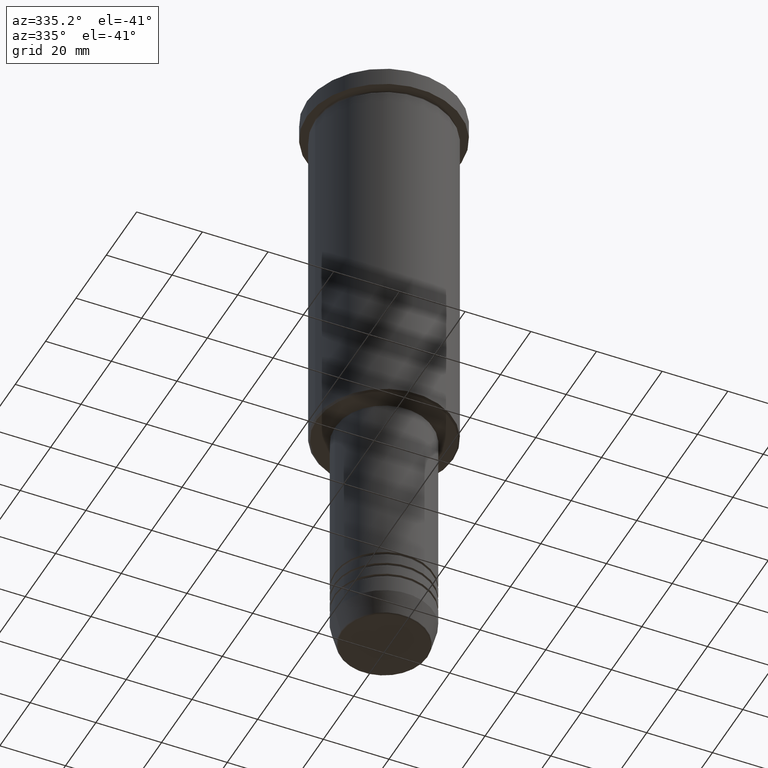
[diagram: clean part render]
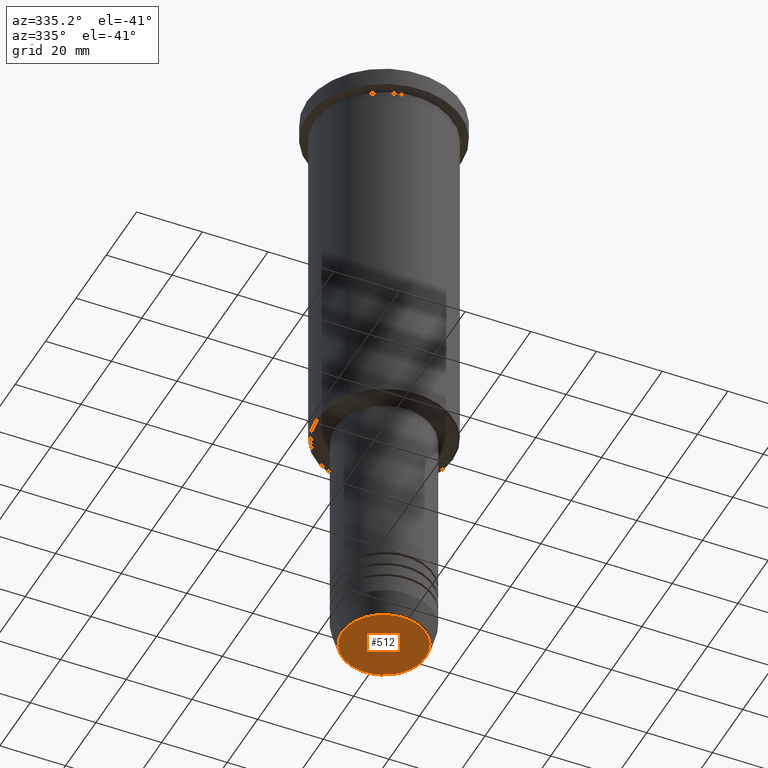
[diagram: same view with one face highlighted and labeled with its STEP entity id]
A machine part, auxiliary view. The second image highlights one B-rep face of the part: STEP entity #512.
In plain terms, the highlighted planar face has unit normal (0, -0, 1).
Its self-contained STEP definition (entity closure, byte-faithful):
#51 = DIRECTION ( 'NONE',  ( 1.000000000000000000, 0.000000000000000000, 0.000000000000000000 ) ) ;
#79 = VERTEX_POINT ( 'NONE', #721 ) ;
#149 = CARTESIAN_POINT ( 'NONE',  ( 0.000000000000000000, 0.000000000000000000, -191.0000000000000000 ) ) ;
#241 = DIRECTION ( 'NONE',  ( 1.000000000000000000, 0.000000000000000000, 0.000000000000000000 ) ) ;
#295 = CARTESIAN_POINT ( 'NONE',  ( 0.000000000000000000, 0.000000000000000000, -191.0000000000000000 ) ) ;
#334 = AXIS2_PLACEMENT_3D ( 'NONE', #295, #398, #1035 ) ;
#398 = DIRECTION ( 'NONE',  ( 0.000000000000000000, 0.000000000000000000, -1.000000000000000000 ) ) ;
#410 = CIRCLE ( 'NONE', #334, 12.74069215899265828 ) ;
#512 = ADVANCED_FACE ( 'NONE', ( #974 ), #612, .F. ) ;
#513 = DIRECTION ( 'NONE',  ( 0.000000000000000000, -0.000000000000000000, 1.000000000000000000 ) ) ;
#517 = ORIENTED_EDGE ( 'NONE', *, *, #1106, .T. ) ;
#552 = ORIENTED_EDGE ( 'NONE', *, *, #587, .T. ) ;
#587 = EDGE_CURVE ( 'NONE', #79, #1183, #1102, .T. ) ;
#612 = PLANE ( 'NONE',  #1135 ) ;
#721 = CARTESIAN_POINT ( 'NONE',  ( -12.74069215899265828, 1.589857736427681035E-15, -191.0000000000000000 ) ) ;
#887 = AXIS2_PLACEMENT_3D ( 'NONE', #969, #1182, #241 ) ;
#969 = CARTESIAN_POINT ( 'NONE',  ( 0.000000000000000000, 0.000000000000000000, -191.0000000000000000 ) ) ;
#974 = FACE_OUTER_BOUND ( 'NONE', #1132, .T. ) ;
#1035 = DIRECTION ( 'NONE',  ( 1.000000000000000000, 0.000000000000000000, 0.000000000000000000 ) ) ;
#1074 = CARTESIAN_POINT ( 'NONE',  ( 12.74069215899265828, 0.000000000000000000, -191.0000000000000000 ) ) ;
#1102 = CIRCLE ( 'NONE', #887, 12.74069215899265828 ) ;
#1106 = EDGE_CURVE ( 'NONE', #1183, #79, #410, .T. ) ;
#1132 = EDGE_LOOP ( 'NONE', ( #517, #552 ) ) ;
#1135 = AXIS2_PLACEMENT_3D ( 'NONE', #149, #513, #51 ) ;
#1182 = DIRECTION ( 'NONE',  ( 0.000000000000000000, 0.000000000000000000, -1.000000000000000000 ) ) ;
#1183 = VERTEX_POINT ( 'NONE', #1074 ) ;